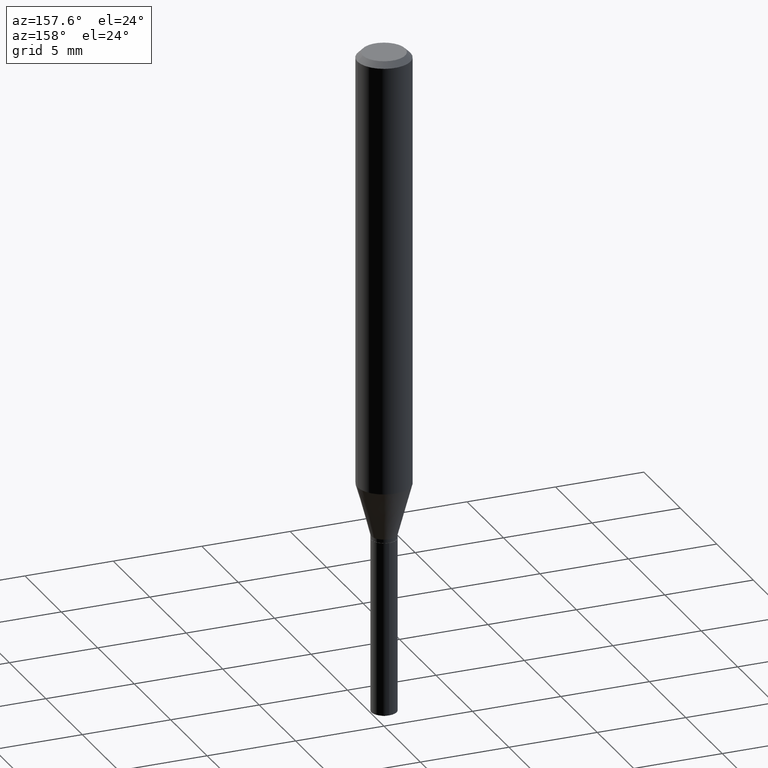
[diagram: clean part render]
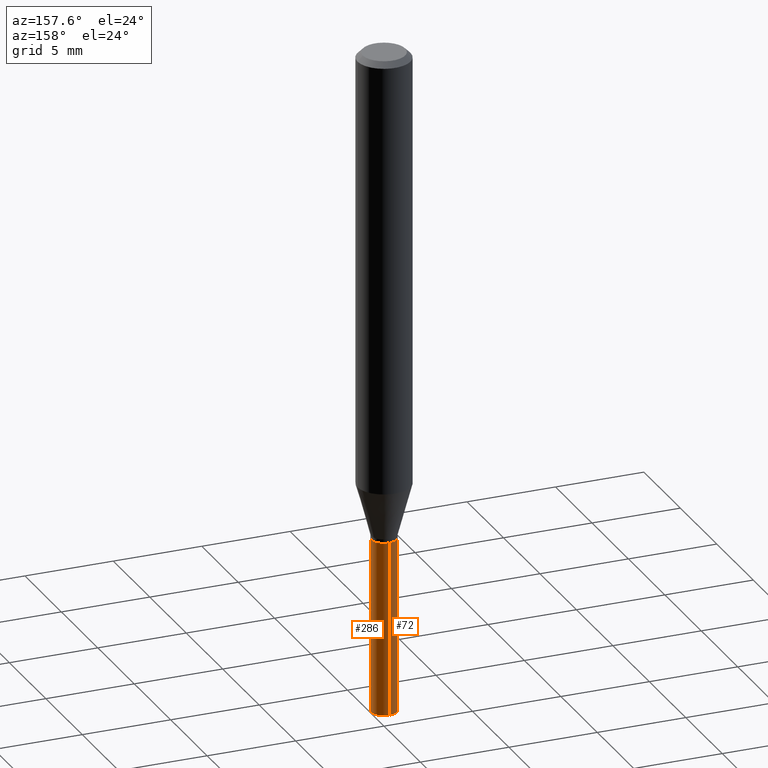
[diagram: same view with one multi-face feature highlighted, each face labeled with its STEP entity id]
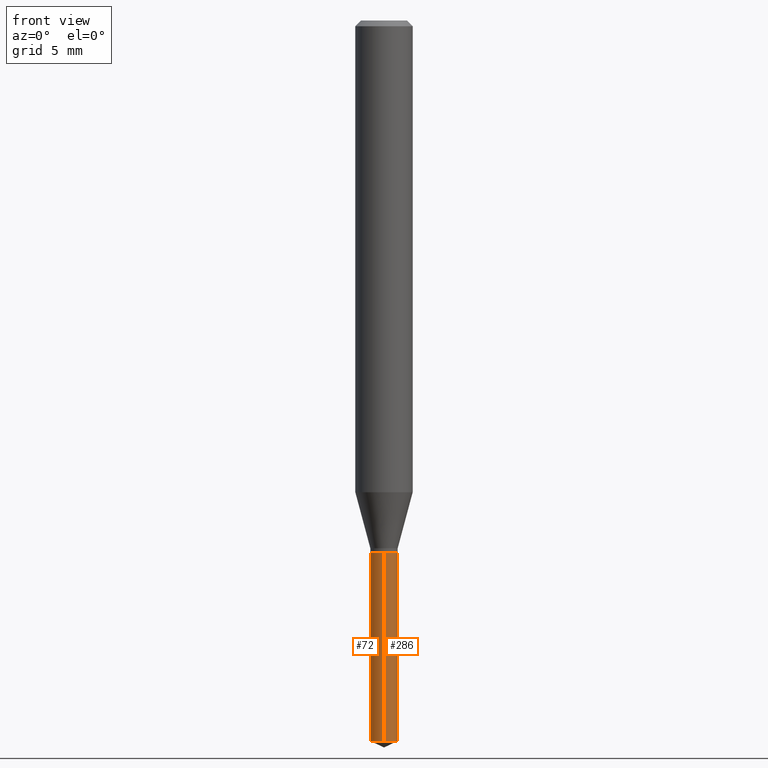
[diagram: same view with one multi-face feature highlighted, each face labeled with its STEP entity id]
A machine part, auxiliary view. The highlighted faces form ONE feature: a constant-radius fillet chain: 2 tangent blend faces with common blend radius 0.715 mm. The faces share edges in the B-rep.
A second angle (front view) of the same feature is appended — it is thin or edge-on in the first view.
Their STEP definitions:
[1] entity #72 (Cylinder):
#2 = ORIENTED_EDGE ( 'NONE', *, *, #157, .F. ) ;
#6 = CARTESIAN_POINT ( 'NONE',  ( -1.965703993768416296E-16, -0.02815000000000382127, -1.094499999999999806 ) ) ;
#8 = CIRCLE ( 'NONE', #301, 0.02815000000000000141 ) ;
#18 = VECTOR ( 'NONE', #484, 39.37007874015748143 ) ;
#58 = DIRECTION ( 'NONE',  ( -2.445470214571802116E-29, 3.491479321953280158E-15, 1.000000000000000000 ) ) ;
#67 = EDGE_LOOP ( 'NONE', ( #2, #317, #383, #454 ) ) ;
#72 = ADVANCED_FACE ( 'NONE', ( #289 ), #435, .T. ) ;
#78 = AXIS2_PLACEMENT_3D ( 'NONE', #388, #58, #352 ) ;
#91 = VERTEX_POINT ( 'NONE', #105 ) ;
#104 = CARTESIAN_POINT ( 'NONE',  ( 2.000177801165045246E-16, 0.02814999999999618502, -1.094500000000000028 ) ) ;
#105 = CARTESIAN_POINT ( 'NONE',  ( -1.965703993768321386E-16, -0.02815000000000518129, -1.482973439422936801 ) ) ;
#157 = EDGE_CURVE ( 'NONE', #322, #456, #362, .T. ) ;
#160 = DIRECTION ( 'NONE',  ( -2.445470214571802116E-29, 3.491479321953280158E-15, 1.000000000000000000 ) ) ;
#206 = CIRCLE ( 'NONE', #413, 0.02815000000000000141 ) ;
#212 = CARTESIAN_POINT ( 'NONE',  ( -1.965703993768416296E-16, -0.02815000000000382127, -1.094499999999999806 ) ) ;
#236 = CARTESIAN_POINT ( 'NONE',  ( 3.626565833630687571E-29, -5.177773306237076602E-15, -1.482973439422936801 ) ) ;
#239 = EDGE_CURVE ( 'NONE', #322, #91, #206, .T. ) ;
#251 = VECTOR ( 'NONE', #370, 39.37007874015748143 ) ;
#266 = DIRECTION ( 'NONE',  ( -2.445470214571802116E-29, 3.491479321953280158E-15, 1.000000000000000000 ) ) ;
#272 = DIRECTION ( 'NONE',  ( -6.982962677686265133E-15, -1.000000000000000000, 0.000000000000000000 ) ) ;
#274 = LINE ( 'NONE', #6, #251 ) ;
#289 = FACE_OUTER_BOUND ( 'NONE', #67, .T. ) ;
#301 = AXIS2_PLACEMENT_3D ( 'NONE', #376, #266, #423 ) ;
#310 = CARTESIAN_POINT ( 'NONE',  ( 2.000177801165044999E-16, 0.02814999999999482153, -1.482973439422936801 ) ) ;
#317 = ORIENTED_EDGE ( 'NONE', *, *, #239, .T. ) ;
#322 = VERTEX_POINT ( 'NONE', #310 ) ;
#337 = EDGE_CURVE ( 'NONE', #456, #442, #8, .T. ) ;
#352 = DIRECTION ( 'NONE',  ( -6.982962677686265133E-15, -1.000000000000000000, 4.852305494963167470E-15 ) ) ;
#356 = EDGE_CURVE ( 'NONE', #91, #442, #274, .T. ) ;
#362 = LINE ( 'NONE', #366, #18 ) ;
#366 = CARTESIAN_POINT ( 'NONE',  ( 2.000177801164949104E-16, 0.02814999999999617808, -1.094500000000000028 ) ) ;
#370 = DIRECTION ( 'NONE',  ( -2.445470214571802396E-29, 3.491479321953280158E-15, 1.000000000000000000 ) ) ;
#376 = CARTESIAN_POINT ( 'NONE',  ( 2.676565608369631794E-29, -3.821426325363822773E-15, -1.094499999999999806 ) ) ;
#383 = ORIENTED_EDGE ( 'NONE', *, *, #356, .T. ) ;
#388 = CARTESIAN_POINT ( 'NONE',  ( 2.676565608369631794E-29, -3.821426325363822773E-15, -1.094499999999999806 ) ) ;
#413 = AXIS2_PLACEMENT_3D ( 'NONE', #236, #160, #272 ) ;
#423 = DIRECTION ( 'NONE',  ( -6.982962677686265133E-15, -1.000000000000000000, 4.852305494963167470E-15 ) ) ;
#435 = CYLINDRICAL_SURFACE ( 'NONE', #78, 0.02815000000000000141 ) ;
#442 = VERTEX_POINT ( 'NONE', #212 ) ;
#454 = ORIENTED_EDGE ( 'NONE', *, *, #337, .F. ) ;
#456 = VERTEX_POINT ( 'NONE', #104 ) ;
#484 = DIRECTION ( 'NONE',  ( -2.445470214571802396E-29, 3.491479321953280158E-15, 1.000000000000000000 ) ) ;
[2] entity #286 (Cylinder):
#6 = CARTESIAN_POINT ( 'NONE',  ( -1.965703993768416296E-16, -0.02815000000000382127, -1.094499999999999806 ) ) ;
#11 = CARTESIAN_POINT ( 'NONE',  ( 2.676565608369631794E-29, -3.821426325363822773E-15, -1.094499999999999806 ) ) ;
#18 = VECTOR ( 'NONE', #484, 39.37007874015748143 ) ;
#34 = DIRECTION ( 'NONE',  ( -6.982962677686265133E-15, -1.000000000000000000, 4.852305494963167470E-15 ) ) ;
#41 = FACE_OUTER_BOUND ( 'NONE', #358, .T. ) ;
#46 = CIRCLE ( 'NONE', #186, 0.02815000000000000141 ) ;
#47 = CARTESIAN_POINT ( 'NONE',  ( 2.676565608369631794E-29, -3.821426325363822773E-15, -1.094499999999999806 ) ) ;
#62 = ORIENTED_EDGE ( 'NONE', *, *, #157, .T. ) ;
#81 = CYLINDRICAL_SURFACE ( 'NONE', #138, 0.02815000000000000141 ) ;
#83 = DIRECTION ( 'NONE',  ( -2.445470214571802116E-29, 3.491479321953280158E-15, 1.000000000000000000 ) ) ;
#91 = VERTEX_POINT ( 'NONE', #105 ) ;
#93 = ORIENTED_EDGE ( 'NONE', *, *, #319, .T. ) ;
#104 = CARTESIAN_POINT ( 'NONE',  ( 2.000177801165045246E-16, 0.02814999999999618502, -1.094500000000000028 ) ) ;
#105 = CARTESIAN_POINT ( 'NONE',  ( -1.965703993768321386E-16, -0.02815000000000518129, -1.482973439422936801 ) ) ;
#117 = ORIENTED_EDGE ( 'NONE', *, *, #353, .F. ) ;
#118 = CARTESIAN_POINT ( 'NONE',  ( 3.626565833630687571E-29, -5.177773306237076602E-15, -1.482973439422936801 ) ) ;
#138 = AXIS2_PLACEMENT_3D ( 'NONE', #47, #460, #34 ) ;
#157 = EDGE_CURVE ( 'NONE', #322, #456, #362, .T. ) ;
#171 = ORIENTED_EDGE ( 'NONE', *, *, #356, .F. ) ;
#186 = AXIS2_PLACEMENT_3D ( 'NONE', #11, #374, #458 ) ;
#212 = CARTESIAN_POINT ( 'NONE',  ( -1.965703993768416296E-16, -0.02815000000000382127, -1.094499999999999806 ) ) ;
#218 = CIRCLE ( 'NONE', #457, 0.02815000000000000141 ) ;
#223 = DIRECTION ( 'NONE',  ( -6.982962677686265133E-15, -1.000000000000000000, 0.000000000000000000 ) ) ;
#251 = VECTOR ( 'NONE', #370, 39.37007874015748143 ) ;
#274 = LINE ( 'NONE', #6, #251 ) ;
#286 = ADVANCED_FACE ( 'NONE', ( #41 ), #81, .T. ) ;
#310 = CARTESIAN_POINT ( 'NONE',  ( 2.000177801165044999E-16, 0.02814999999999482153, -1.482973439422936801 ) ) ;
#319 = EDGE_CURVE ( 'NONE', #91, #322, #218, .T. ) ;
#322 = VERTEX_POINT ( 'NONE', #310 ) ;
#353 = EDGE_CURVE ( 'NONE', #442, #456, #46, .T. ) ;
#356 = EDGE_CURVE ( 'NONE', #91, #442, #274, .T. ) ;
#358 = EDGE_LOOP ( 'NONE', ( #93, #62, #117, #171 ) ) ;
#362 = LINE ( 'NONE', #366, #18 ) ;
#366 = CARTESIAN_POINT ( 'NONE',  ( 2.000177801164949104E-16, 0.02814999999999617808, -1.094500000000000028 ) ) ;
#370 = DIRECTION ( 'NONE',  ( -2.445470214571802396E-29, 3.491479321953280158E-15, 1.000000000000000000 ) ) ;
#374 = DIRECTION ( 'NONE',  ( -2.445470214571802116E-29, 3.491479321953280158E-15, 1.000000000000000000 ) ) ;
#442 = VERTEX_POINT ( 'NONE', #212 ) ;
#456 = VERTEX_POINT ( 'NONE', #104 ) ;
#457 = AXIS2_PLACEMENT_3D ( 'NONE', #118, #83, #223 ) ;
#458 = DIRECTION ( 'NONE',  ( -6.982962677686265133E-15, -1.000000000000000000, 4.852305494963167470E-15 ) ) ;
#460 = DIRECTION ( 'NONE',  ( -2.445470214571802116E-29, 3.491479321953280158E-15, 1.000000000000000000 ) ) ;
#484 = DIRECTION ( 'NONE',  ( -2.445470214571802396E-29, 3.491479321953280158E-15, 1.000000000000000000 ) ) ;